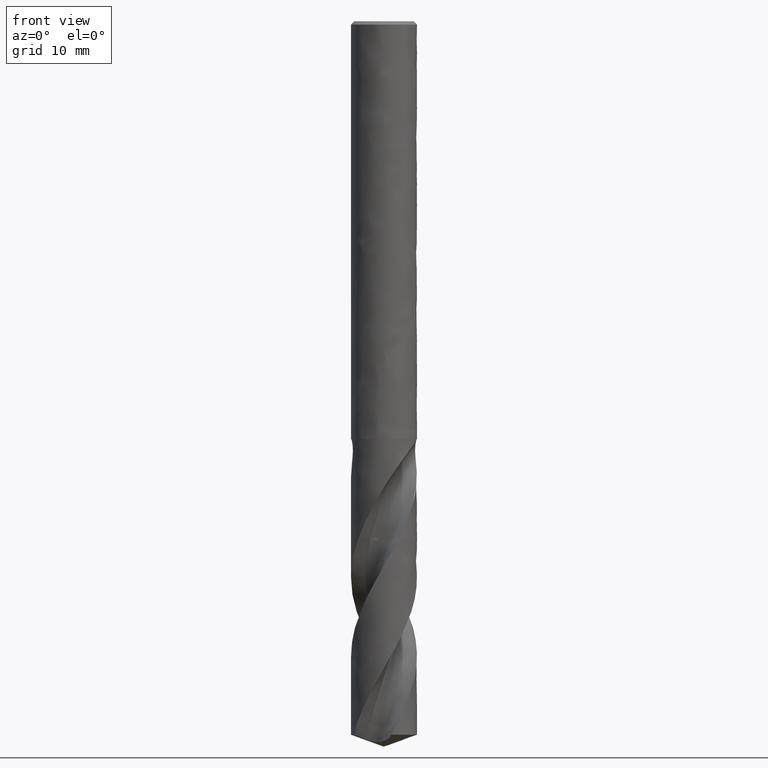
[diagram: clean part render]
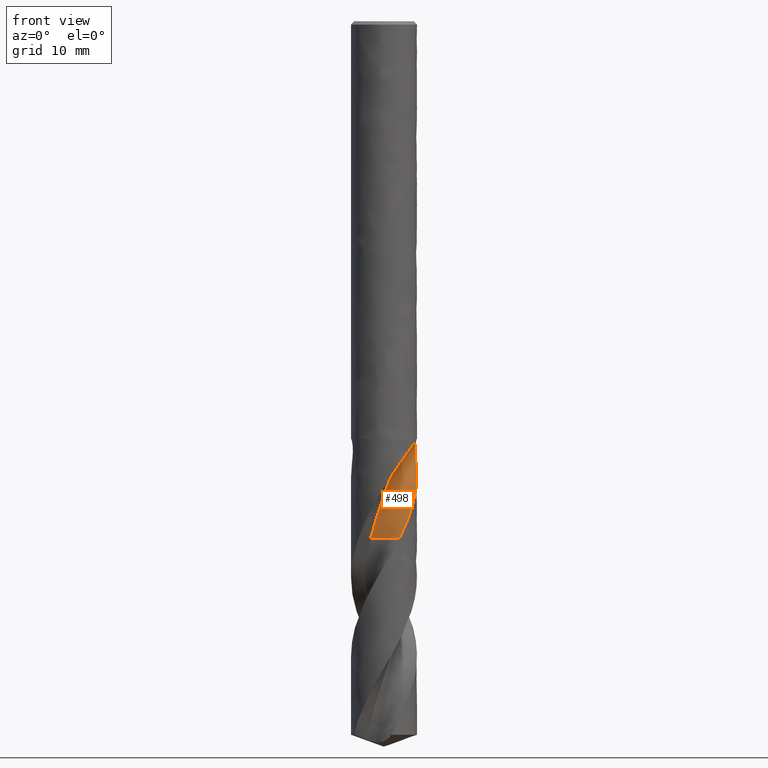
[diagram: same view with one face highlighted and labeled with its STEP entity id]
A machine part, front view. The second image highlights one B-rep face of the part: STEP entity #498.
In plain terms, the highlighted face is a freeform B-spline surface patch.
Its self-contained STEP definition (entity closure, byte-faithful):
#338 = VERTEX_POINT('', #339);
#339 = CARTESIAN_POINT('', (-1.21383007507821, -1.32358241608791, -47.));
#345 = EDGE_CURVE('', #338, #346, #348, .T.);
#346 = VERTEX_POINT('', #347);
#347 = CARTESIAN_POINT('', (1.78603378112266, -2.4104114446892, -39.7531575791044));
#348 = B_SPLINE_CURVE_WITH_KNOTS('', 3, (#349, #350, #351, #352, #353, #354, #355, #356, #357, #358, #359, #360, #361, #362, #363, #364, #365), .UNSPECIFIED., .F., .U., (4, 1, 1, 1, 1, 1, 1, 1, 1, 1, 1, 1, 1, 1, 4), (19.05, 19.2637254901961, 19.8141176470588, 20.3645098039216, 20.9149019607843, 21.4652941176471, 22.0156862745098, 22.5660784313725, 23.1164705882353, 23.666862745098, 24.2172549019608, 24.7676470588235, 25.3180392156863, 25.868431372549, 26.2968424208956), .UNSPECIFIED.);
#349 = CARTESIAN_POINT('', (-1.21383007507821, -1.32358241608791, -47.));
#350 = CARTESIAN_POINT('', (-1.19627669995168, -1.34048559974497, -46.9287581699346));
#351 = CARTESIAN_POINT('', (-1.13227749444923, -1.39969610515516, -46.6740522875817));
#352 = CARTESIAN_POINT('', (-1.01484391903396, -1.49376496434262, -46.2358823529412));
#353 = CARTESIAN_POINT('', (-0.855295864234759, -1.59578787490851, -45.6854901960784));
#354 = CARTESIAN_POINT('', (-0.686256539257478, -1.68315840566112, -45.1350980392157));
#355 = CARTESIAN_POINT('', (-0.504990291457025, -1.74248456684727, -44.5847058823529));
#356 = CARTESIAN_POINT('', (-0.316894251094182, -1.77069070617348, -44.0343137254902));
#357 = CARTESIAN_POINT('', (-0.127039274039907, -1.76554678525314, -43.4839215686275));
#358 = CARTESIAN_POINT('', (0.0557160993547279, -1.73412318163229, -42.9335294117647));
#359 = CARTESIAN_POINT('', (0.240646259753675, -1.76904342811896, -42.383137254902));
#360 = CARTESIAN_POINT('', (0.450382745564296, -1.8490234743331, -41.8327450980392));
#361 = CARTESIAN_POINT('', (0.703409637910805, -1.97124831911697, -41.2823529411765));
#362 = CARTESIAN_POINT('', (1.01730638828412, -2.1226307376513, -40.7319607843137));
#363 = CARTESIAN_POINT('', (1.37815662904775, -2.27569897754587, -40.2222289969564));
#364 = CARTESIAN_POINT('', (1.65527555799941, -2.37095226053838, -39.8959612618866));
#365 = CARTESIAN_POINT('', (1.78603378112266, -2.4104114446892, -39.7531575791044));
#498 = ADVANCED_FACE('', (#499), #813, .T.);
#499 = FACE_OUTER_BOUND('', #500, .T.);
#500 = EDGE_LOOP('', (#501, #564, #606, #617, #728, #740, #748, #766, #812));
#501 = ORIENTED_EDGE('', *, *, #502, .T.);
#502 = EDGE_CURVE('', #338, #503, #505, .T.);
#503 = VERTEX_POINT('', #504);
#504 = CARTESIAN_POINT('', (1.40658153903245, -2.64981666800801, -47.));
#505 = B_SPLINE_CURVE_WITH_KNOTS('', 3, (#506, #507, #508, #509, #510, #511, #512, #513, #514, #515, #516, #517, #518, #519, #520, #521, #522, #523, #524, #525, #526, #527, #528, #529, #530, #531, #532, #533, #534, #535, #536, #537, #538, #539, #540, #541, #542, #543, #544, #545, #546, #547, #548, #549, #550, #551, #552, #553, #554, #555, #556, #557, #558, #559, #560, #561, #562, #563), .UNSPECIFIED., .F., .U., (4, 3, 3, 3, 3, 3, 3, 3, 3, 3, 3, 3, 3, 3, 3, 3, 3, 3, 3, 4), (0., 0.198384932101445, 0.396452544409531, 0.594211753382103, 0.791669291329075, 0.988829890577812, 1.18569641110773, 1.38226991902396, 1.57854972037163, 1.70943970370936, 1.74834433318963, 1.94669456411553, 2.14472854829068, 2.34245495597353, 2.53988029614019, 2.737009094101, 2.93384401353807, 3.13038592999499, 3.3266339600419, 3.4333321975433), .UNSPECIFIED.);
#506 = CARTESIAN_POINT('', (-1.21383007507822, -1.32358241608791, -47.));
#507 = CARTESIAN_POINT('', (-1.15534944995377, -1.29271220453772, -47.));
#508 = CARTESIAN_POINT('', (-1.09507376834295, -1.26502792601886, -47.));
#509 = CARTESIAN_POINT('', (-1.03355098874822, -1.24078125476202, -47.));
#510 = CARTESIAN_POINT('', (-0.972126615799097, -1.21657336643406, -47.));
#511 = CARTESIAN_POINT('', (-0.909273457812871, -1.19571888366935, -47.));
#512 = CARTESIAN_POINT('', (-0.845561082502684, -1.17840678726753, -47.));
#513 = CARTESIAN_POINT('', (-0.781947911241206, -1.1611216468542, -47.));
#514 = CARTESIAN_POINT('', (-0.717286503253029, -1.14731574722268, -47.));
#515 = CARTESIAN_POINT('', (-0.652160993198719, -1.1371138073475, -47.));
#516 = CARTESIAN_POINT('', (-0.58713482860353, -1.12692742998231, -47.));
#517 = CARTESIAN_POINT('', (-0.521450620933685, -1.12030338921182, -47.));
#518 = CARTESIAN_POINT('', (-0.455699939691454, -1.11730134291484, -47.));
#519 = CARTESIAN_POINT('', (-0.390048135007187, -1.11430381112629, -47.));
#520 = CARTESIAN_POINT('', (-0.324133410931934, -1.11490837733413, -47.));
#521 = CARTESIAN_POINT('', (-0.258547632944896, -1.11910961298088, -47.));
#522 = CARTESIAN_POINT('', (-0.193059680698075, -1.12330458219305, -47.));
#523 = CARTESIAN_POINT('', (-0.127704120229022, -1.13109799516582, -47.));
#524 = CARTESIAN_POINT('', (-0.0630660507212188, -1.14242008094881, -47.));
#525 = CARTESIAN_POINT('', (0.00147581263818019, -1.1537253151415, -47.));
#526 = CARTESIAN_POINT('', (0.0654944987188667, -1.16858235596677, -47.));
#527 = CARTESIAN_POINT('', (0.128418577780606, -1.18685858972231, -47.));
#528 = CARTESIAN_POINT('', (0.191248640026259, -1.20510751639074, -47.));
#529 = CARTESIAN_POINT('', (0.253173892893517, -1.22681957023846, -47.));
#530 = CARTESIAN_POINT('', (0.313643239431596, -1.25180152723947, -47.));
#531 = CARTESIAN_POINT('', (0.353967468957345, -1.26846084680854, -47.));
#532 = CARTESIAN_POINT('', (0.393711780706873, -1.28659932989787, -47.));
#533 = CARTESIAN_POINT('', (0.432718691744312, -1.30614510454784, -47.));
#534 = CARTESIAN_POINT('', (0.444312775434935, -1.31195472497311, -47.));
#535 = CARTESIAN_POINT('', (0.455844740877854, -1.31789000335301, -47.));
#536 = CARTESIAN_POINT('', (0.467310547491013, -1.32394886007854, -47.));
#537 = CARTESIAN_POINT('', (0.525767482304508, -1.35483915891213, -47.));
#538 = CARTESIAN_POINT('', (0.582605695585864, -1.38900707151013, -47.));
#539 = CARTESIAN_POINT('', (0.637308658754547, -1.42614209016346, -47.));
#540 = CARTESIAN_POINT('', (0.691924404306806, -1.46321790127802, -47.));
#541 = CARTESIAN_POINT('', (0.744576770340692, -1.50336337764563, -47.));
#542 = CARTESIAN_POINT('', (0.794788789120177, -1.54621484905701, -47.));
#543 = CARTESIAN_POINT('', (0.844922821100215, -1.58899976570345, -47.));
#544 = CARTESIAN_POINT('', (0.892775134022109, -1.63461114429061, -47.));
#545 = CARTESIAN_POINT('', (0.937913585367525, -1.6826370796293, -47.));
#546 = CARTESIAN_POINT('', (0.982983306786623, -1.7305898884229, -47.));
#547 = CARTESIAN_POINT('', (1.02548280975264, -1.7810939034887, -47.));
#548 = CARTESIAN_POINT('', (1.06502945693745, -1.83369442018228, -47.));
#549 = CARTESIAN_POINT('', (1.1045167031863, -1.88621592840999, -47.));
#550 = CARTESIAN_POINT('', (1.14117822177725, -1.94098489244228, -47.));
#551 = CARTESIAN_POINT('', (1.17468492533265, -1.99750968576062, -47.));
#552 = CARTESIAN_POINT('', (1.20814167727937, -2.05395021222913, -47.));
#553 = CARTESIAN_POINT('', (1.2385529235809, -2.11230981897816, -47.));
#554 = CARTESIAN_POINT('', (1.26564649311648, -2.17206620582248, -47.));
#555 = CARTESIAN_POINT('', (1.29269973191887, -2.23173364097327, -47.));
#556 = CARTESIAN_POINT('', (1.31652571826219, -2.29297129110354, -47.));
#557 = CARTESIAN_POINT('', (1.33691184998262, -2.35523272523937, -47.));
#558 = CARTESIAN_POINT('', (1.35726749860219, -2.41740106071365, -47.));
#559 = CARTESIAN_POINT('', (1.37425401151974, -2.48077460718547, -47.));
#560 = CARTESIAN_POINT('', (1.38772026796514, -2.54478956093624, -47.));
#561 = CARTESIAN_POINT('', (1.39504174695335, -2.57959389878008, -47.));
#562 = CARTESIAN_POINT('', (1.40133542653307, -2.61463962590714, -47.));
#563 = CARTESIAN_POINT('', (1.40658153903245, -2.64981666800801, -47.));
#564 = ORIENTED_EDGE('', *, *, #565, .F.);
#565 = EDGE_CURVE('', #566, #503, #568, .T.);
#566 = VERTEX_POINT('', #567);
#567 = CARTESIAN_POINT('', (2.65824873947468, -1.39058032456995, -43.8326240906969));
#568 = B_SPLINE_CURVE_WITH_KNOTS('', 3, (#569, #570, #571, #572, #573, #574, #575, #576, #577, #578, #579, #580, #581, #582, #583, #584, #585, #586, #587, #588, #589, #590, #591, #592, #593, #594, #595, #596, #597, #598, #599, #600, #601, #602, #603, #604, #605), .UNSPECIFIED., .F., .U., (4, 3, 3, 3, 3, 3, 3, 3, 3, 3, 3, 3, 4), (0., 0.19710134543937, 0.394187785994562, 0.837653330037511, 1.28106754910433, 1.47812350726689, 1.77369450994475, 2.06927509771292, 2.26631426520074, 2.70955318718737, 3.15273672522402, 3.59583824486794, 3.64430300471417), .UNSPECIFIED.);
#569 = CARTESIAN_POINT('', (2.65824873947468, -1.39058032456994, -43.8326240906969));
#570 = CARTESIAN_POINT('', (2.64372941372749, -1.41833562836906, -43.8903768501228));
#571 = CARTESIAN_POINT('', (2.62872710962599, -1.44595566855233, -43.9480754460094));
#572 = CARTESIAN_POINT('', (2.6132424768125, -1.47341907052368, -44.0057168948916));
#573 = CARTESIAN_POINT('', (2.59775901495326, -1.50088039570137, -44.0633539849039));
#574 = CARTESIAN_POINT('', (2.58179154776277, -1.5281881371425, -44.1209365340917));
#575 = CARTESIAN_POINT('', (2.56534321821207, -1.55531802946321, -44.1784632019458));
#576 = CARTESIAN_POINT('', (2.52833271971076, -1.61636318520269, -44.3079043496223));
#577 = CARTESIAN_POINT('', (2.4888780853714, -1.6765194665111, -44.43709326542));
#578 = CARTESIAN_POINT('', (2.44703469073677, -1.73551756612568, -44.5660104997903));
#579 = CARTESIAN_POINT('', (2.40519613889377, -1.79450883752984, -44.6949128137816));
#580 = CARTESIAN_POINT('', (2.36095341946284, -1.85236278710502, -44.8235836642281));
#581 = CARTESIAN_POINT('', (2.3144194692355, -1.90878561405509, -44.9520254687534));
#582 = CARTESIAN_POINT('', (2.29373950058578, -1.93386025927122, -45.0091057827589));
#583 = CARTESIAN_POINT('', (2.27260527964495, -1.95865531400462, -45.0661468789811));
#584 = CARTESIAN_POINT('', (2.25102837353582, -1.98314680786287, -45.1231483266328));
#585 = CARTESIAN_POINT('', (2.21866443065975, -2.01988244105183, -45.2086467565895));
#586 = CARTESIAN_POINT('', (2.18529632138945, -2.05594295897342, -45.2940637826045));
#587 = CARTESIAN_POINT('', (2.15099439857323, -2.09122526221033, -45.3794186315514));
#588 = CARTESIAN_POINT('', (2.11669136337782, -2.12650870961924, -45.4647762484759));
#589 = CARTESIAN_POINT('', (2.08144870408361, -2.16101852468267, -45.5500846553268));
#590 = CARTESIAN_POINT('', (2.0453890108344, -2.19462611721402, -45.6353945076226));
#591 = CARTESIAN_POINT('', (2.02135099131715, -2.2170295236882, -45.6922635408761));
#592 = CARTESIAN_POINT('', (1.99695492678005, -2.23902846436832, -45.7491431257901));
#593 = CARTESIAN_POINT('', (1.97222053551059, -2.26060747572645, -45.8060323348238));
#594 = CARTESIAN_POINT('', (1.91658060837304, -2.30914938672749, -45.9340044126916));
#595 = CARTESIAN_POINT('', (1.85920809209071, -2.3555858638333, -46.0620506758264));
#596 = CARTESIAN_POINT('', (1.80020963045151, -2.39984276285544, -46.1900720792809));
#597 = CARTESIAN_POINT('', (1.74121854083603, -2.44409413185357, -46.318077486101));
#598 = CARTESIAN_POINT('', (1.68056417352336, -2.48619120140137, -46.4460900127957));
#599 = CARTESIAN_POINT('', (1.61844652449992, -2.52599106240187, -46.5740778451531));
#600 = CARTESIAN_POINT('', (1.55634037136767, -2.5657835577844, -46.70204199126));
#601 = CARTESIAN_POINT('', (1.49275668542629, -2.60328922585031, -46.830029010803));
#602 = CARTESIAN_POINT('', (1.42790677401899, -2.63838629558119, -46.958006056875));
#603 = CARTESIAN_POINT('', (1.42081373722478, -2.64222507965303, -46.9720036996921));
#604 = CARTESIAN_POINT('', (1.41370500703695, -2.64603537298108, -46.986002162665));
#605 = CARTESIAN_POINT('', (1.40658153903245, -2.64981666800801, -47.));
#606 = ORIENTED_EDGE('', *, *, #607, .T.);
#607 = EDGE_CURVE('', #566, #608, #610, .T.);
#608 = VERTEX_POINT('', #609);
#609 = CARTESIAN_POINT('', (2.9291945217409, -0.647934760452859, -42.4446164819957));
#610 = (
   BOUNDED_CURVE ()
   B_SPLINE_CURVE (3, (#611, #612, #613, #614, #615, #616), .UNSPECIFIED., .F., .U.)
   B_SPLINE_CURVE_WITH_KNOTS ((4, 1, 1, 4), (22.217375909303, 22.5660784313725, 23.1164705882353, 23.6053835180043), .UNSPECIFIED.)
   CURVE ()
   GEOMETRIC_REPRESENTATION_ITEM ()
   RATIONAL_B_SPLINE_CURVE ((1., 1., 1., 1., 1., 1.))
   REPRESENTATION_ITEM ('')
);
#611 = CARTESIAN_POINT('', (2.65824873947462, -1.39058032457002, -43.8326240906971));
#612 = CARTESIAN_POINT('', (2.6807436255867, -1.32734872692769, -43.7163899166738));
#613 = CARTESIAN_POINT('', (2.73019872923959, -1.16171918575506, -43.4166916903631));
#614 = CARTESIAN_POINT('', (2.77522186769001, -0.903540888125325, -42.9540224874626));
#615 = CARTESIAN_POINT('', (2.87209092984141, -0.730465604114445, -42.6075874585854));
#616 = CARTESIAN_POINT('', (2.9291945217409, -0.64793476045286, -42.4446164819957));
#617 = ORIENTED_EDGE('', *, *, #618, .T.);
#618 = EDGE_CURVE('', #608, #619, #621, .T.);
#619 = VERTEX_POINT('', #620);
#620 = CARTESIAN_POINT('', (2.98685957380658, 0.280481525879957, -38.));
#621 = B_SPLINE_CURVE_WITH_KNOTS('', 3, (#622, #623, #624, #625, #626, #627, #628, #629, #630, #631, #632, #633, #634, #635, #636, #637, #638, #639, #640, #641, #642, #643, #644, #645, #646, #647, #648, #649, #650, #651, #652, #653, #654, #655, #656, #657, #658, #659, #660, #661, #662, #663, #664, #665, #666, #667, #668, #669, #670, #671, #672, #673, #674, #675, #676, #677, #678, #679, #680, #681, #682, #683, #684, #685, #686, #687, #688, #689, #690, #691, #692, #693, #694, #695, #696, #697, #698, #699, #700, #701, #702, #703, #704, #705, #706, #707, #708, #709, #710, #711, #712, #713, #714, #715, #716, #717, #718, #719, #720, #721, #722, #723, #724, #725, #726, #727), .UNSPECIFIED., .F., .U., (4, 3, 3, 3, 3, 3, 3, 3, 3, 3, 3, 3, 3, 3, 3, 3, 3, 3, 3, 3, 3, 3, 3, 3, 3, 3, 3, 3, 3, 3, 3, 3, 3, 3, 3, 4), (0., 0.131289354803777, 0.426448063340143, 0.721339953690394, 0.917947035074306, 1.11446978268667, 1.15336991380743, 1.19227812026894, 1.48742834800541, 1.68413575581635, 1.88073659014775, 2.07723634010891, 2.27364032992015, 2.46996058064449, 2.66621674088295, 2.8624308924983, 3.0586344521856, 3.25487573603953, 3.45121755379421, 3.64775016280274, 3.84460582597283, 3.97606183369487, 4.10771448761755, 4.14667706900818, 4.27875704567368, 4.41122461212306, 4.49942872243124, 4.58774575787076, 4.67615373935926, 4.76461221019083, 4.85306505634276, 4.94145033252354, 5.02971379327199, 5.11781954026202, 5.20575324425046, 5.22821105372492), .UNSPECIFIED.);
#622 = CARTESIAN_POINT('', (2.9291945217409, -0.64793476045286, -42.4446164819957));
#623 = CARTESIAN_POINT('', (2.93437262752013, -0.624525491484285, -42.4080049555671));
#624 = CARTESIAN_POINT('', (2.9393021677224, -0.60090811621597, -42.3714898748393));
#625 = CARTESIAN_POINT('', (2.94396614016892, -0.577116422863894, -42.3350561924974));
#626 = CARTESIAN_POINT('', (2.95445146920432, -0.52362902859505, -42.253147658151));
#627 = CARTESIAN_POINT('', (2.96359172495592, -0.469247116559032, -42.171636328921));
#628 = CARTESIAN_POINT('', (2.97124348488095, -0.414381652046144, -42.0903277633005));
#629 = CARTESIAN_POINT('', (2.97888832775206, -0.359565784930515, -42.009092699167));
#630 = CARTESIAN_POINT('', (2.98504881216746, -0.304253650979331, -41.9280384857639));
#631 = CARTESIAN_POINT('', (2.98965803896624, -0.248887143188478, -41.8469480214768));
#632 = CARTESIAN_POINT('', (2.99273105201949, -0.211973793383401, -41.7928842780059));
#633 = CARTESIAN_POINT('', (2.99511653750182, -0.17503243398606, -41.7387960970907));
#634 = CARTESIAN_POINT('', (2.99681504829293, -0.138201180624159, -41.6846158331745));
#635 = CARTESIAN_POINT('', (2.99851283051506, -0.101385725871774, -41.6304588096522));
#636 = CARTESIAN_POINT('', (2.99952451035377, -0.0646760289683579, -41.5762035619673));
#637 = CARTESIAN_POINT('', (2.99986741308199, -0.0282046792056818, -41.5217887989511));
#638 = CARTESIAN_POINT('', (2.99993528797816, -0.0209854625747527, -41.5110178248936));
#639 = CARTESIAN_POINT('', (2.99997701214663, -0.0137754667578817, -41.5002404675716));
#640 = CARTESIAN_POINT('', (2.99999279335327, -0.0065756998453745, -41.4894562807561));
#641 = CARTESIAN_POINT('', (3.00000857783595, 0.000625561678321245, -41.4786698552339));
#642 = CARTESIAN_POINT('', (2.99999840868021, 0.00781662540090383, -41.467876544498));
#643 = CARTESIAN_POINT('', (2.99996251732332, 0.0149964880921303, -41.4570759113789));
#644 = CARTESIAN_POINT('', (2.99969025234064, 0.0694615560342376, -41.3751443700739));
#645 = CARTESIAN_POINT('', (2.99793130243836, 0.1232923821493, -41.2927763249011));
#646 = CARTESIAN_POINT('', (2.99482987750662, 0.176051142551545, -41.2097932568753));
#647 = CARTESIAN_POINT('', (2.99276288517013, 0.211213029695032, -41.1544879151558));
#648 = CARTESIAN_POINT('', (2.99010091819404, 0.245903394396838, -41.0988982132172));
#649 = CARTESIAN_POINT('', (2.98690586130464, 0.27998817065005, -41.0429756665409));
#650 = CARTESIAN_POINT('', (2.98371253545493, 0.314054480220969, -40.9870834179629));
#651 = CARTESIAN_POINT('', (2.97998615818036, 0.347522098797693, -40.9308488259485));
#652 = CARTESIAN_POINT('', (2.97580310910496, 0.380257617729448, -40.8742313186776));
#653 = CARTESIAN_POINT('', (2.97162221078788, 0.412976305352594, -40.8176429218888));
#654 = CARTESIAN_POINT('', (2.96698420884537, 0.444970821875797, -40.7606603206603));
#655 = CARTESIAN_POINT('', (2.96197988365867, 0.47610415751331, -40.7032502934599));
#656 = CARTESIAN_POINT('', (2.9569779972279, 0.507222320953969, -40.6458682438666));
#657 = CARTESIAN_POINT('', (2.95160903481115, 0.53748706552346, -40.5880443047932));
#658 = CARTESIAN_POINT('', (2.94597864704716, 0.566753748238551, -40.5297534942328));
#659 = CARTESIAN_POINT('', (2.94035065986338, 0.596007952768807, -40.471487536626));
#660 = CARTESIAN_POINT('', (2.9344597630849, 0.624274127079043, -40.412737584442));
#661 = CARTESIAN_POINT('', (2.92842560605999, 0.651401158866178, -40.353491338707));
#662 = CARTESIAN_POINT('', (2.92239341893912, 0.678519334793353, -40.294264434434));
#663 = CARTESIAN_POINT('', (2.91621576504039, 0.704509647963104, -40.2345196855261));
#664 = CARTESIAN_POINT('', (2.91002713375178, 0.729206473386229, -40.1742587811715));
#665 = CARTESIAN_POINT('', (2.90383982713945, 0.753898012454877, -40.1140107756611));
#666 = CARTESIAN_POINT('', (2.89763882106932, 0.777307680065313, -40.0532185316583));
#667 = CARTESIAN_POINT('', (2.8915755200583, 0.799244025188556, -39.9919012406535));
#668 = CARTESIAN_POINT('', (2.88551254635316, 0.821179186155674, -39.9305872596462));
#669 = CARTESIAN_POINT('', (2.87958364361326, 0.841654880403119, -39.8687121648582));
#670 = CARTESIAN_POINT('', (2.87395664151417, 0.860449430644576, -39.8063229275462));
#671 = CARTESIAN_POINT('', (2.86832855750829, 0.879247594524573, -39.7439216946211));
#672 = CARTESIAN_POINT('', (2.86299810761243, 0.896379481476633, -39.6809581753039));
#673 = CARTESIAN_POINT('', (2.85815218040795, 0.91157342744799, -39.6175182733434));
#674 = CARTESIAN_POINT('', (2.85330377064754, 0.926775157238462, -39.5540458712857));
#675 = CARTESIAN_POINT('', (2.84893581942823, 0.940052914028314, -39.4900310229115));
#676 = CARTESIAN_POINT('', (2.84525530797121, 0.95106373732871, -39.425621698319));
#677 = CARTESIAN_POINT('', (2.84157122005043, 0.962085260177513, -39.3611497852472));
#678 = CARTESIAN_POINT('', (2.83857114751267, 0.970852735979587, -39.2961909076688));
#679 = CARTESIAN_POINT('', (2.83648109291378, 0.97692118901303, -39.2309952053993));
#680 = CARTESIAN_POINT('', (2.83438760274846, 0.982999617179945, -39.1656923364717));
#681 = CARTESIAN_POINT('', (2.83320432964646, 0.986383919737103, -39.100018168048));
#682 = CARTESIAN_POINT('', (2.83317040560399, 0.986481349448503, -39.0343996947585));
#683 = CARTESIAN_POINT('', (2.83314775185292, 0.986546410929021, -38.990581079675));
#684 = CARTESIAN_POINT('', (2.83363785914191, 0.98514322086057, -38.9467238339677));
#685 = CARTESIAN_POINT('', (2.83470777179449, 0.982054911157165, -38.9030272276451));
#686 = CARTESIAN_POINT('', (2.83577928493884, 0.978961981624053, -38.8592652551839));
#687 = CARTESIAN_POINT('', (2.83743507752988, 0.974172878512838, -38.8155885454578));
#688 = CARTESIAN_POINT('', (2.83972936496662, 0.967438439254025, -38.7722848717079));
#689 = CARTESIAN_POINT('', (2.84040835895819, 0.965445383057104, -38.7594691565459));
#690 = CARTESIAN_POINT('', (2.84114336542698, 0.963281106867249, -38.7466816197284));
#691 = CARTESIAN_POINT('', (2.84193537158331, 0.960938782516163, -38.7339316352641));
#692 = CARTESIAN_POINT('', (2.8446202079292, 0.952998493793177, -38.6907102266605));
#693 = CARTESIAN_POINT('', (2.84796924482714, 0.94299496304871, -38.6478346307298));
#694 = CARTESIAN_POINT('', (2.85199398627534, 0.930661217763631, -38.6057629433807));
#695 = CARTESIAN_POINT('', (2.85603053836061, 0.918291279001006, -38.5635677963171));
#696 = CARTESIAN_POINT('', (2.86076325840962, 0.90352884623942, -38.5220367319392));
#697 = CARTESIAN_POINT('', (2.86613565188857, 0.886152596889108, -38.4818006421656));
#698 = CARTESIAN_POINT('', (2.86971288365735, 0.874582545022692, -38.4550092652581));
#699 = CARTESIAN_POINT('', (2.87358073915023, 0.861827069091493, -38.4287299875372));
#700 = CARTESIAN_POINT('', (2.87769729121064, 0.84785511743396, -38.4031902316665));
#701 = CARTESIAN_POINT('', (2.88181911357173, 0.83386527789716, -38.3776177779967));
#702 = CARTESIAN_POINT('', (2.88620039985917, 0.818620702294329, -38.3527263231976));
#703 = CARTESIAN_POINT('', (2.89077408946115, 0.802137870755439, -38.328766919106));
#704 = CARTESIAN_POINT('', (2.8953524889019, 0.785638065725567, -38.304782842389));
#705 = CARTESIAN_POINT('', (2.9001363315514, 0.767850280220211, -38.2816676425854));
#706 = CARTESIAN_POINT('', (2.90503288951431, 0.748855066645159, -38.2596756707597));
#707 = CARTESIAN_POINT('', (2.90993224387627, 0.72984900500143, -38.237671139432));
#708 = CARTESIAN_POINT('', (2.914959072615, 0.709574913333389, -38.2167249499724));
#709 = CARTESIAN_POINT('', (2.92000029752256, 0.688184758962431, -38.1970658350702));
#710 = CARTESIAN_POINT('', (2.92504120188111, 0.666795964695989, -38.1774079702035));
#711 = CARTESIAN_POINT('', (2.93011212498069, 0.644222042846066, -38.1589742005194));
#712 = CARTESIAN_POINT('', (2.93509091711734, 0.620678103573259, -38.1419384310792));
#713 = CARTESIAN_POINT('', (2.94006590590728, 0.597152149739775, -38.1249156754254));
#714 = CARTESIAN_POINT('', (2.94496427558947, 0.572582405090088, -38.1092335416547));
#715 = CARTESIAN_POINT('', (2.94966882674133, 0.547223731713455, -38.0949927512862));
#716 = CARTESIAN_POINT('', (2.95436689392938, 0.521900008476643, -38.0807715880333));
#717 = CARTESIAN_POINT('', (2.95888559416542, 0.495713091531125, -38.0679430636233));
#718 = CARTESIAN_POINT('', (2.9631245101022, 0.468927646478192, -38.0565336024992));
#719 = CARTESIAN_POINT('', (2.96735585172275, 0.442190063056498, -38.0451445283958));
#720 = CARTESIAN_POINT('', (2.97131999617303, 0.414783035739165, -38.0351362393576));
#721 = CARTESIAN_POINT('', (2.97493959996296, 0.386955264303561, -38.0264744131411));
#722 = CARTESIAN_POINT('', (2.97855213579737, 0.359181831812793, -38.0178295007653));
#723 = CARTESIAN_POINT('', (2.98183033847185, 0.330922927753586, -38.0105032905811));
#724 = CARTESIAN_POINT('', (2.98472055518862, 0.30239577946189, -38.0044207799866));
#725 = CARTESIAN_POINT('', (2.98545870146725, 0.295110094541021, -38.0028673384976));
#726 = CARTESIAN_POINT('', (2.98617193115373, 0.287804261431204, -38.0013942513343));
#727 = CARTESIAN_POINT('', (2.98685957380658, 0.280481525879957, -38.));
#728 = ORIENTED_EDGE('', *, *, #729, .F.);
#729 = EDGE_CURVE('', #730, #619, #732, .T.);
#730 = VERTEX_POINT('', #731);
#731 = CARTESIAN_POINT('', (2.99942034386521, 0.0589711862478137, -37.98));
#732 = B_SPLINE_CURVE_WITH_KNOTS('', 3, (#733, #734, #735, #736, #737, #738, #739), .UNSPECIFIED., .F., .U., (4, 3, 4), (0., 0.132045433370552, 0.223039637492084), .UNSPECIFIED.);
#733 = CARTESIAN_POINT('', (2.99942034386523, 0.0589711862472797, -37.98));
#734 = CARTESIAN_POINT('', (2.99855513580525, 0.10297780747884, -37.9800405506151));
#735 = CARTESIAN_POINT('', (2.99671393311244, 0.147042906438508, -37.9821917591609));
#736 = CARTESIAN_POINT('', (2.99393108586823, 0.190726644892284, -37.9868090849535));
#737 = CARTESIAN_POINT('', (2.99201339008948, 0.220829670132845, -37.9899909434619));
#738 = CARTESIAN_POINT('', (2.98964575364249, 0.250811379544621, -37.9943507940679));
#739 = CARTESIAN_POINT('', (2.98685957380658, 0.280481525879944, -38.));
#740 = ORIENTED_EDGE('', *, *, #741, .T.);
#741 = EDGE_CURVE('', #730, #742, #744, .T.);
#742 = VERTEX_POINT('', #743);
#743 = CARTESIAN_POINT('', (2.9994692410011, 0.0564293566177066, -37.98));
#744 = LINE('', #745, #746);
#745 = CARTESIAN_POINT('', (2.99942034386521, 0.0589711862478137, -37.98));
#746 = VECTOR('', #747, 0.00254229990331355);
#747 = DIRECTION('', (4.8897135884296E-5, -0.0025418296301071, 0.));
#748 = ORIENTED_EDGE('', *, *, #749, .T.);
#749 = EDGE_CURVE('', #742, #750, #752, .T.);
#750 = VERTEX_POINT('', #751);
#751 = CARTESIAN_POINT('', (2.99408928495557, -0.188226867673721, -38.));
#752 = B_SPLINE_CURVE_WITH_KNOTS('', 3, (#753, #754, #755, #756, #757, #758, #759, #760, #761, #762, #763, #764, #765), .UNSPECIFIED., .F., .U., (4, 3, 3, 3, 4), (0., 0.0388816069665259, 0.0777860472194635, 0.209747178363801, 0.245790659573731), .UNSPECIFIED.);
#753 = CARTESIAN_POINT('', (2.99946924100192, 0.0564293565751176, -37.98));
#754 = CARTESIAN_POINT('', (2.99971302579464, 0.0434711193809744, -37.9800119278191));
#755 = CARTESIAN_POINT('', (2.99987282696599, 0.0305100361763866, -37.9802060869075));
#756 = CARTESIAN_POINT('', (2.99994863691001, 0.0175549395255036, -37.9805737934431));
#757 = CARTESIAN_POINT('', (3.00002449137356, 0.0045922349732142, -37.9809417159151));
#758 = CARTESIAN_POINT('', (3.00001627663556, -0.00836735701215939, -37.9814834666212));
#759 = CARTESIAN_POINT('', (2.99992427124618, -0.0213158811231998, -37.982190635985));
#760 = CARTESIAN_POINT('', (2.99961219542208, -0.0652363662203629, -37.9845893048399));
#761 = CARTESIAN_POINT('', (2.99833290485831, -0.109085898956848, -37.9888927507692));
#762 = CARTESIAN_POINT('', (2.99611545394992, -0.152617779444139, -37.9948019222403));
#763 = CARTESIAN_POINT('', (2.9955097858304, -0.164507951214949, -37.9964159362234));
#764 = CARTESIAN_POINT('', (2.99483411606698, -0.176378979657946, -37.9981504498035));
#765 = CARTESIAN_POINT('', (2.99408928495557, -0.188226867673711, -38.));
#766 = ORIENTED_EDGE('', *, *, #767, .F.);
#767 = EDGE_CURVE('', #346, #750, #768, .T.);
#768 = B_SPLINE_CURVE_WITH_KNOTS('', 3, (#769, #770, #771, #772, #773, #774, #775, #776, #777, #778, #779, #780, #781, #782, #783, #784, #785, #786, #787, #788, #789, #790, #791, #792, #793, #794, #795, #796, #797, #798, #799, #800, #801, #802, #803, #804, #805, #806, #807, #808, #809, #810, #811), .UNSPECIFIED., .F., .U., (4, 3, 3, 3, 3, 3, 3, 3, 3, 3, 3, 3, 3, 3, 4), (0., 0.298887318343757, 0.597968485407002, 0.897194702264193, 1.19651288117712, 1.49585484490648, 1.79516392097546, 1.99379368142314, 2.19236221219636, 2.39084108618394, 2.5891920989357, 2.78736276315552, 2.98527985183927, 3.11683923397545, 3.20181331991244), .UNSPECIFIED.);
#769 = CARTESIAN_POINT('', (1.78603378112266, -2.4104114446892, -39.7531575791044));
#770 = CARTESIAN_POINT('', (1.8377029700737, -2.3721263141099, -39.6770622279004));
#771 = CARTESIAN_POINT('', (1.88950010787631, -2.33117024798474, -39.6023323409855));
#772 = CARTESIAN_POINT('', (1.94101936934514, -2.28745356408102, -39.5291163862259));
#773 = CARTESIAN_POINT('', (1.99257204455304, -2.24370852693957, -39.4558529459485));
#774 = CARTESIAN_POINT('', (2.04389573873354, -2.19715680527442, -39.3840285275281));
#775 = CARTESIAN_POINT('', (2.09455822888152, -2.14774901369427, -39.313807302104));
#776 = CARTESIAN_POINT('', (2.14524528956275, -2.0983172600905, -39.2435520204591));
#777 = CARTESIAN_POINT('', (2.19532757458001, -2.04597065198727, -39.1748217053424));
#778 = CARTESIAN_POINT('', (2.244355425882, -1.99069553732207, -39.1078186272093));
#779 = CARTESIAN_POINT('', (2.29339834505486, -1.93540343479656, -39.0407949568271));
#780 = CARTESIAN_POINT('', (2.34144928695128, -1.8771088022998, -38.9754151537934));
#781 = CARTESIAN_POINT('', (2.38802947238617, -1.81585110595968, -38.9119141468868));
#782 = CARTESIAN_POINT('', (2.43461335923728, -1.7545885418796, -38.8484080939794));
#783 = CARTESIAN_POINT('', (2.47979424274498, -1.69027260329415, -38.78668686958));
#784 = CARTESIAN_POINT('', (2.52307710130722, -1.62298550235644, -38.7270612104241));
#785 = CARTESIAN_POINT('', (2.56635520453233, -1.55570579401846, -38.6674421021319));
#786 = CARTESIAN_POINT('', (2.60780930652242, -1.48534021987017, -38.6098148766325));
#787 = CARTESIAN_POINT('', (2.6469204973833, -1.41202403681104, -38.5545967319929));
#788 = CARTESIAN_POINT('', (2.6728757626681, -1.36336939502992, -38.5179524478095));
#789 = CARTESIAN_POINT('', (2.69782742035729, -1.31336391405524, -38.4823308060762));
#790 = CARTESIAN_POINT('', (2.72161605926447, -1.26206419248537, -38.447889656967));
#791 = CARTESIAN_POINT('', (2.74539736507808, -1.21078028458433, -38.4134591246975));
#792 = CARTESIAN_POINT('', (2.76804040102332, -1.15815063699735, -38.380172894802));
#793 = CARTESIAN_POINT('', (2.7893783195751, -1.10425023897865, -38.3482277606896));
#794 = CARTESIAN_POINT('', (2.81070660372417, -1.05037417782952, -38.3162970503029));
#795 = CARTESIAN_POINT('', (2.83075587095623, -0.995164673577352, -38.285667876676));
#796 = CARTESIAN_POINT('', (2.84935091412389, -0.938722199684961, -38.2565892342389));
#797 = CARTESIAN_POINT('', (2.86793397825744, -0.882316086359919, -38.227529324431));
#798 = CARTESIAN_POINT('', (2.88509024889458, -0.824599237178134, -38.1999763400385));
#799 = CARTESIAN_POINT('', (2.90063590784666, -0.765709690490203, -38.1742506324738));
#800 = CARTESIAN_POINT('', (2.91616743207498, -0.706873688491277, -38.1485483157328));
#801 = CARTESIAN_POINT('', (2.93011691550009, -0.646766098613719, -38.1246248534159));
#802 = CARTESIAN_POINT('', (2.94229356541698, -0.58558396059475, -38.1028995767513));
#803 = CARTESIAN_POINT('', (2.95445463431666, -0.524480110113984, -38.081202099351));
#804 = CARTESIAN_POINT('', (2.9648719311613, -0.462171832219814, -38.0616489945091));
#805 = CARTESIAN_POINT('', (2.97335420819837, -0.398954574593456, -38.0447972296056));
#806 = CARTESIAN_POINT('', (2.9789925446024, -0.356932819883043, -38.033595529978));
#807 = CARTESIAN_POINT('', (2.98378451957899, -0.314449496523936, -38.0235731827244));
#808 = CARTESIAN_POINT('', (2.98767742388496, -0.271631387744697, -38.01493885371));
#809 = CARTESIAN_POINT('', (2.99019184725538, -0.243975210009688, -38.0093619484086));
#810 = CARTESIAN_POINT('', (2.99233331298105, -0.216158782700453, -38.0043603956128));
#811 = CARTESIAN_POINT('', (2.99408928495557, -0.188226867673722, -38.));
#812 = ORIENTED_EDGE('', *, *, #345, .F.);
#813 = (
   BOUNDED_SURFACE ()
   B_SPLINE_SURFACE (3, 2, ((#814, #815, #816, #817, #818), (#819, #820, #821, #822, #823), (#824, #825, #826, #827, #828), (#829, #830, #831, #832, #833), (#834, #835, #836, #837, #838), (#839, #840, #841, #842, #843), (#844, #845, #846, #847, #848), (#849, #850, #851, #852, #853), (#854, #855, #856, #857, #858), (#859, #860, #861, #862, #863), (#864, #865, #866, #867, #868), (#869, #870, #871, #872, #873), (#874, #875, #876, #877, #878), (#879, #880, #881, #882, #883), (#884, #885, #886, #887, #888), (#889, #890, #891, #892, #893), (#894, #895, #896, #897, #898), (#899, #900, #901, #902, #903), (#904, #905, #906, #907, #908)), .UNSPECIFIED., .F., .F., .U.)
   B_SPLINE_SURFACE_WITH_KNOTS ((4, 1, 1, 1, 1, 1, 1, 1, 1, 1, 1, 1, 1, 1, 1, 1, 4), (3, 2, 3), (19.049999999442, 19.2637254901961, 19.8141176470588, 20.3645098039216, 20.9149019607843, 21.4652941176471, 22.0156862745098, 22.5660784313725, 23.1164705882353, 23.666862745098, 24.2172549019608, 24.7676470588235, 25.3180392156863, 25.868431372549, 26.4188235294118, 26.9692156862745, 28.07), (0., 0.5, 1.), .UNSPECIFIED.)
   GEOMETRIC_REPRESENTATION_ITEM ()
   RATIONAL_B_SPLINE_SURFACE (((1., 0.887010833178222, 1., 0.887010833178222, 1.), (1., 0.887010833178222, 1., 0.887010833178222, 1.), (1., 0.887010833178222, 1., 0.887010833178222, 1.), (1., 0.887010833178222, 1., 0.887010833178222, 1.), (1., 0.887010833178221, 1., 0.887010833178221, 1.), (1., 0.887010833178222, 1., 0.887010833178222, 1.), (1., 0.887010833178221, 1., 0.887010833178221, 1.), (1., 0.887010833178222, 1., 0.887010833178222, 1.), (1., 0.887010833178222, 1., 0.887010833178222, 1.), (1., 0.887010833178222, 1., 0.887010833178222, 1.), (1., 0.887010833178221, 1., 0.887010833178221, 1.), (1., 0.887010833178222, 1., 0.887010833178222, 1.), (1., 0.887010833178221, 1., 0.887010833178221, 1.), (1., 0.887010833178222, 1., 0.887010833178222, 1.), (1., 0.887010833178222, 1., 0.887010833178222, 1.), (1., 0.887010833178221, 1., 0.887010833178221, 1.), (1., 0.887010833178222, 1., 0.887010833178222, 1.), (0.999999999999999, 0.887010833178221, 0.999999999999999, 0.887010833178221, 0.999999999999999), (1., 0.887010833178222, 1., 0.887010833178222, 1.)))
   REPRESENTATION_ITEM ('')
   SURFACE ()
);
#814 = CARTESIAN_POINT('', (1.40949590623115, -2.67015344530247, -47.000000000558));
#815 = CARTESIAN_POINT('', (1.28187847784399, -1.74192899259679, -47.000000000558));
#816 = CARTESIAN_POINT('', (0.448323170060507, -1.31405939623021, -47.000000000558));
#817 = CARTESIAN_POINT('', (-0.385232137722972, -0.886189799863636, -47.000000000558));
#818 = CARTESIAN_POINT('', (-1.21383007521571, -1.32358241595551, -47.000000000558));
#819 = CARTESIAN_POINT('', (1.44618267456168, -2.65191595686696, -46.9287581703067));
#820 = CARTESIAN_POINT('', (1.30593159967174, -1.72511587201258, -46.9287581703067));
#821 = CARTESIAN_POINT('', (0.466296703786284, -1.30841213684178, -46.9287581703067));
#822 = CARTESIAN_POINT('', (-0.373338192099174, -0.891708401670977, -46.9287581703067));
#823 = CARTESIAN_POINT('', (-1.19627670004516, -1.34048559965849, -46.9287581703067));
#824 = CARTESIAN_POINT('', (1.57611307679155, -2.58405549581478, -46.6740522877677));
#825 = CARTESIAN_POINT('', (1.39077139824689, -1.66325360626627, -46.6740522877677));
#826 = CARTESIAN_POINT('', (0.530187028551099, -1.28692635474554, -46.6740522877677));
#827 = CARTESIAN_POINT('', (-0.330397341144694, -0.910599103224811, -46.6740522877677));
#828 = CARTESIAN_POINT('', (-1.13227749449908, -1.39969610511523, -46.6740522877677));
#829 = CARTESIAN_POINT('', (1.7914435265127, -2.45129577554842, -46.2358823529412));
#830 = CARTESIAN_POINT('', (1.52922015691329, -1.54635301507025, -46.2358823529412));
#831 = CARTESIAN_POINT('', (0.63752929884028, -1.24209998068121, -46.2358823529412));
#832 = CARTESIAN_POINT('', (-0.254161559232727, -0.937846946292173, -46.2358823529412));
#833 = CARTESIAN_POINT('', (-1.01484391903396, -1.49376496434262, -46.2358823529412));
#834 = CARTESIAN_POINT('', (2.04317588556454, -2.25635074670019, -45.6854901960784));
#835 = CARTESIAN_POINT('', (1.68685583513696, -1.38153707589613, -45.6854901960784));
#836 = CARTESIAN_POINT('', (0.765873643601183, -1.17164486585406, -45.6854901960784));
#837 = CARTESIAN_POINT('', (-0.155108547934596, -0.961752655811992, -45.6854901960784));
#838 = CARTESIAN_POINT('', (-0.855295864234759, -1.59578787490851, -45.6854901960784));
#839 = CARTESIAN_POINT('', (2.27707398399753, -2.03809455368048, -45.1350980392157));
#840 = CARTESIAN_POINT('', (1.82938365975628, -1.20210044301547, -45.1350980392157));
#841 = CARTESIAN_POINT('', (0.887792754224344, -1.08932036452039, -45.1350980392157));
#842 = CARTESIAN_POINT('', (-0.0537981513075962, -0.976540286025311, -45.1350980392157));
#843 = CARTESIAN_POINT('', (-0.686256539257479, -1.68315840566112, -45.1350980392157));
#844 = CARTESIAN_POINT('', (2.47348015426642, -1.78462503571852, -44.5847058823529));
#845 = CARTESIAN_POINT('', (1.94161497945061, -1.00169804294283, -44.5847058823529));
#846 = CARTESIAN_POINT('', (0.995213401199285, -0.988308013739999, -44.5847058823529));
#847 = CARTESIAN_POINT('', (0.0488118229479622, -0.97491798453717, -44.5847058823529));
#848 = CARTESIAN_POINT('', (-0.504990291457025, -1.74248456684727, -44.5847058823529));
#849 = CARTESIAN_POINT('', (2.62447350031274, -1.50274901586502, -44.0343137254902));
#850 = CARTESIAN_POINT('', (2.0186611062744, -0.785992487683741, -44.0343137254902));
#851 = CARTESIAN_POINT('', (1.08404881688742, -0.87113029355029, -44.0343137254902));
#852 = CARTESIAN_POINT('', (0.149436527500433, -0.95626809941684, -44.0343137254902));
#853 = CARTESIAN_POINT('', (-0.316894251094182, -1.77069070617348, -44.0343137254902));
#854 = CARTESIAN_POINT('', (2.72365647378337, -1.19923474851856, -43.4839215686275));
#855 = CARTESIAN_POINT('', (2.05670839224579, -0.560457386598926, -43.4839215686275));
#856 = CARTESIAN_POINT('', (1.15090690654429, -0.74040162815347, -43.4839215686275));
#857 = CARTESIAN_POINT('', (0.245105420842802, -0.920345869708013, -43.4839215686275));
#858 = CARTESIAN_POINT('', (-0.127039274039907, -1.76554678525314, -43.4839215686275));
#859 = CARTESIAN_POINT('', (2.77721608424612, -0.892105358455929, -42.9335294117647));
#860 = CARTESIAN_POINT('', (2.06205257771023, -0.337203590276081, -42.9335294117647));
#861 = CARTESIAN_POINT('', (1.19730272443896, -0.604752659938343, -42.9335294117647));
#862 = CARTESIAN_POINT('', (0.332552871167692, -0.872301729600606, -42.9335294117647));
#863 = CARTESIAN_POINT('', (0.0557160993547275, -1.73412318163229, -42.9335294117647));
#864 = CARTESIAN_POINT('', (2.93705047805857, -0.619037601238632, -42.383137254902));
#865 = CARTESIAN_POINT('', (2.1462965340362, -0.126799427133385, -42.383137254902));
#866 = CARTESIAN_POINT('', (1.28952079819792, -0.492210919169662, -42.383137254902));
#867 = CARTESIAN_POINT('', (0.432745062359634, -0.857622411205939, -42.383137254902));
#868 = CARTESIAN_POINT('', (0.240646259753675, -1.76904342811896, -42.383137254902));
#869 = CARTESIAN_POINT('', (3.18225352915928, -0.332165733218357, -41.8327450980392));
#870 = CARTESIAN_POINT('', (2.28955020593511, 0.102444129994535, -41.8327450980392));
#871 = CARTESIAN_POINT('', (1.42150505716245, -0.379533645623461, -41.8327450980392));
#872 = CARTESIAN_POINT('', (0.553459908389789, -0.861511421241456, -41.8327450980392));
#873 = CARTESIAN_POINT('', (0.450382745564296, -1.8490234743331, -41.8327450980392));
#874 = CARTESIAN_POINT('', (3.5188174144838, -0.00063167876423261, -41.2823529411765));
#875 = CARTESIAN_POINT('', (2.49278330065819, 0.373022799827922, -41.2823529411765));
#876 = CARTESIAN_POINT('', (1.598194480079, -0.253135737765075, -41.2823529411765));
#877 = CARTESIAN_POINT('', (0.703605659499798, -0.879294275358071, -41.2823529411765));
#878 = CARTESIAN_POINT('', (0.703409637910805, -1.97124831911697, -41.2823529411765));
#879 = CARTESIAN_POINT('', (3.93595841541062, 0.410797321945353, -40.7319607843137));
#880 = CARTESIAN_POINT('', (2.74461723994159, 0.708750797465147, -40.7319607843137));
#881 = CARTESIAN_POINT('', (1.81722281546274, -0.0962396691789128, -40.7319607843137));
#882 = CARTESIAN_POINT('', (0.889828390983894, -0.901230135822972, -40.7319607843137));
#883 = CARTESIAN_POINT('', (1.01730638828412, -2.1226307376513, -40.7319607843137));
#884 = CARTESIAN_POINT('', (4.41791691442274, 0.934290155562891, -40.181568627451));
#885 = CARTESIAN_POINT('', (3.03047372323422, 1.13074378457396, -40.181568627451));
#886 = CARTESIAN_POINT('', (2.07374361018038, 0.106898030613432, -40.181568627451));
#887 = CARTESIAN_POINT('', (1.11701349712654, -0.916947723347091, -40.181568627451));
#888 = CARTESIAN_POINT('', (1.40694099072475, -2.28790895021781, -40.181568627451));
#889 = CARTESIAN_POINT('', (4.94119042103341, 1.59932179618692, -39.6311764705882));
#890 = CARTESIAN_POINT('', (3.33057534843947, 1.65738727476033, -39.6311764705882));
#891 = CARTESIAN_POINT('', (2.35920003929173, 0.371353635757492, -39.6311764705882));
#892 = CARTESIAN_POINT('', (1.38782473014399, -0.914680003245342, -39.6311764705882));
#893 = CARTESIAN_POINT('', (1.88412382637722, -2.44802266519238, -39.6311764705882));
#894 = CARTESIAN_POINT('', (5.65403222664943, 2.70796748264277, -38.8973202614379));
#895 = CARTESIAN_POINT('', (3.71788335107002, 2.51840505348304, -38.8973202614379));
#896 = CARTESIAN_POINT('', (2.76263443013667, 0.823676201420844, -38.8973202614379));
#897 = CARTESIAN_POINT('', (1.80738550920332, -0.871052650641355, -38.8973202614379));
#898 = CARTESIAN_POINT('', (2.64771784098848, -2.6256032925759, -38.8973202614379));
#899 = CARTESIAN_POINT('', (6.1523745837775, 3.81910989224966, -38.3469281045752));
#900 = CARTESIAN_POINT('', (3.95297580761412, 3.35842556588464, -38.3469281045752));
#901 = CARTESIAN_POINT('', (3.06882300318128, 1.29254588798447, -38.3469281045752));
#902 = CARTESIAN_POINT('', (2.18467019874845, -0.773333789915701, -38.3469281045752));
#903 = CARTESIAN_POINT('', (3.36981054539909, -2.68252927071073, -38.3469281045752));
#904 = CARTESIAN_POINT('', (6.4131896623806, 4.69945072014254, -37.98));
#905 = CARTESIAN_POINT('', (4.04430104974054, 4.00973715832461, -37.98));
#906 = CARTESIAN_POINT('', (3.25054263532688, 1.67365376169707, -37.98));
#907 = CARTESIAN_POINT('', (2.45678422091323, -0.662429634930468, -37.98));
#908 = CARTESIAN_POINT('', (3.9151105882272, -2.65256085242547, -37.98));